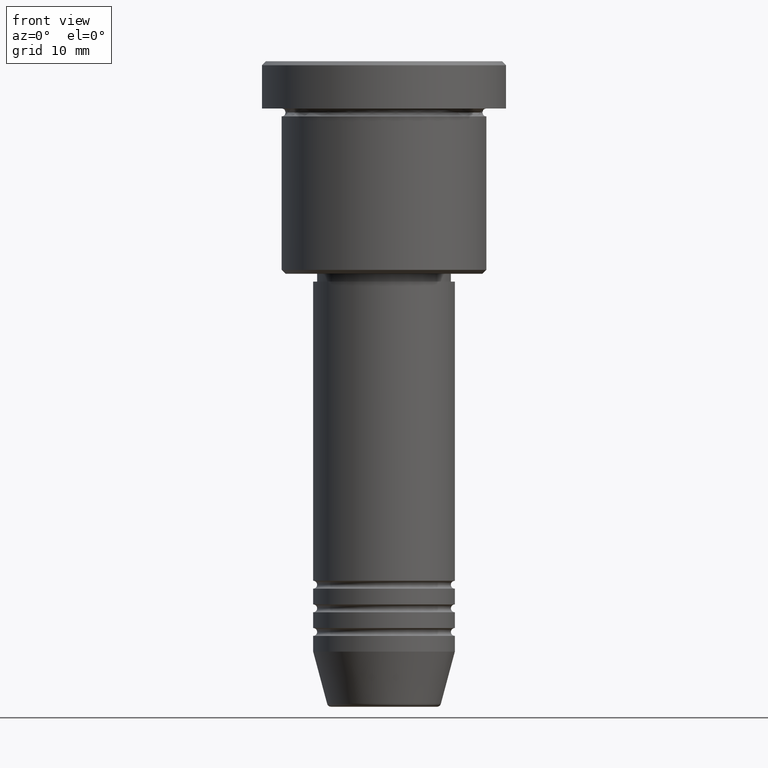
[diagram: clean part render]
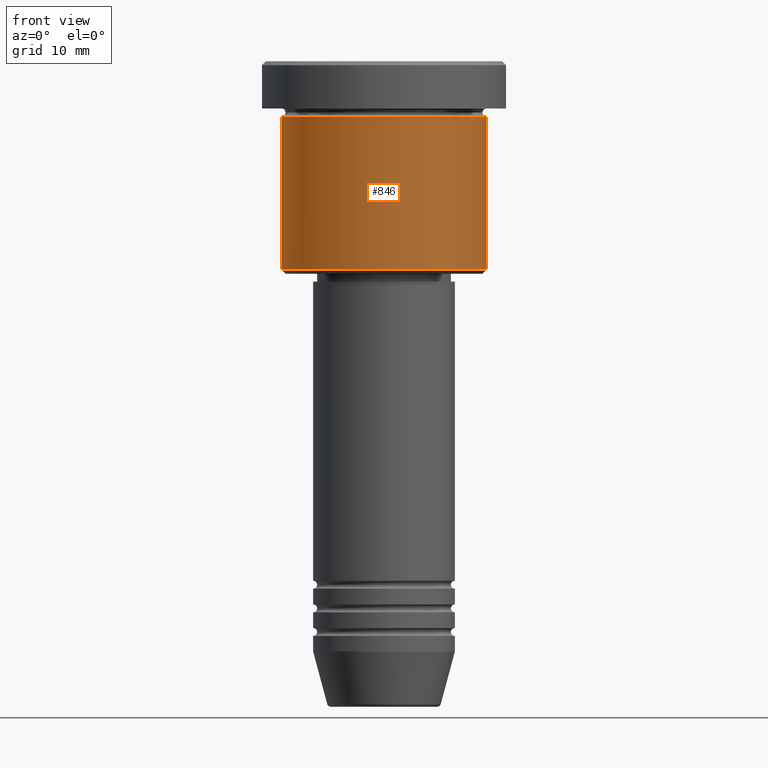
[diagram: same view with one face highlighted and labeled with its STEP entity id]
A machine part, front view. The second image highlights one B-rep face of the part: STEP entity #846.
In plain terms, the highlighted cylindrical surface (partial cylindrical patch) has radius 13 mm, axis along (-0, -0, 1).
Its self-contained STEP definition (entity closure, byte-faithful):
#19 = CIRCLE ( 'NONE', #196, 13.00000000000000000 ) ;
#120 = FACE_OUTER_BOUND ( 'NONE', #1066, .T. ) ;
#132 = DIRECTION ( 'NONE',  ( -1.000000000000000000, 0.000000000000000000, 0.000000000000000000 ) ) ;
#155 = ORIENTED_EDGE ( 'NONE', *, *, #638, .T. ) ;
#167 = VERTEX_POINT ( 'NONE', #790 ) ;
#196 = AXIS2_PLACEMENT_3D ( 'NONE', #1004, #1181, #811 ) ;
#224 = ORIENTED_EDGE ( 'NONE', *, *, #258, .T. ) ;
#258 = EDGE_CURVE ( 'NONE', #769, #1153, #982, .T. ) ;
#305 = CARTESIAN_POINT ( 'NONE',  ( -13.00000000000000000, 1.592040838891559095E-15, 0.000000000000000000 ) ) ;
#341 = CARTESIAN_POINT ( 'NONE',  ( 0.000000000000000000, 0.000000000000000000, -26.49999999999999645 ) ) ;
#353 = EDGE_CURVE ( 'NONE', #167, #633, #19, .T. ) ;
#413 = VECTOR ( 'NONE', #943, 1000.000000000000000 ) ;
#432 = VECTOR ( 'NONE', #958, 1000.000000000000000 ) ;
#474 = DIRECTION ( 'NONE',  ( -0.000000000000000000, -0.000000000000000000, 1.000000000000000000 ) ) ;
#576 = DIRECTION ( 'NONE',  ( 1.000000000000000000, 0.000000000000000000, 0.000000000000000000 ) ) ;
#584 = LINE ( 'NONE', #305, #413 ) ;
#618 = LINE ( 'NONE', #892, #432 ) ;
#633 = VERTEX_POINT ( 'NONE', #1063 ) ;
#638 = EDGE_CURVE ( 'NONE', #1153, #633, #618, .T. ) ;
#680 = AXIS2_PLACEMENT_3D ( 'NONE', #341, #893, #132 ) ;
#716 = CARTESIAN_POINT ( 'NONE',  ( -13.00000000000000000, 1.592040838891559095E-15, -26.49999999999999645 ) ) ;
#769 = VERTEX_POINT ( 'NONE', #716 ) ;
#790 = CARTESIAN_POINT ( 'NONE',  ( -13.00000000000000000, 1.592040838891559095E-15, -6.999999999999995559 ) ) ;
#811 = DIRECTION ( 'NONE',  ( 1.000000000000000000, 0.000000000000000000, 0.000000000000000000 ) ) ;
#831 = CARTESIAN_POINT ( 'NONE',  ( 0.000000000000000000, 0.000000000000000000, 0.000000000000000000 ) ) ;
#846 = ADVANCED_FACE ( 'NONE', ( #120 ), #854, .T. ) ;
#854 = CYLINDRICAL_SURFACE ( 'NONE', #1035, 13.00000000000000000 ) ;
#863 = ORIENTED_EDGE ( 'NONE', *, *, #900, .F. ) ;
#892 = CARTESIAN_POINT ( 'NONE',  ( 13.00000000000000000, 0.000000000000000000, 0.000000000000000000 ) ) ;
#893 = DIRECTION ( 'NONE',  ( -0.000000000000000000, -0.000000000000000000, 1.000000000000000000 ) ) ;
#900 = EDGE_CURVE ( 'NONE', #769, #167, #584, .T. ) ;
#943 = DIRECTION ( 'NONE',  ( -0.000000000000000000, -0.000000000000000000, 1.000000000000000000 ) ) ;
#958 = DIRECTION ( 'NONE',  ( -0.000000000000000000, -0.000000000000000000, 1.000000000000000000 ) ) ;
#982 = CIRCLE ( 'NONE', #680, 13.00000000000000000 ) ;
#1004 = CARTESIAN_POINT ( 'NONE',  ( 0.000000000000000000, 0.000000000000000000, -6.999999999999995559 ) ) ;
#1035 = AXIS2_PLACEMENT_3D ( 'NONE', #831, #474, #576 ) ;
#1063 = CARTESIAN_POINT ( 'NONE',  ( 13.00000000000000000, 0.000000000000000000, -6.999999999999995559 ) ) ;
#1066 = EDGE_LOOP ( 'NONE', ( #863, #224, #155, #1114 ) ) ;
#1114 = ORIENTED_EDGE ( 'NONE', *, *, #353, .F. ) ;
#1153 = VERTEX_POINT ( 'NONE', #1160 ) ;
#1160 = CARTESIAN_POINT ( 'NONE',  ( 13.00000000000000000, 0.000000000000000000, -26.49999999999999645 ) ) ;
#1181 = DIRECTION ( 'NONE',  ( -0.000000000000000000, -0.000000000000000000, 1.000000000000000000 ) ) ;